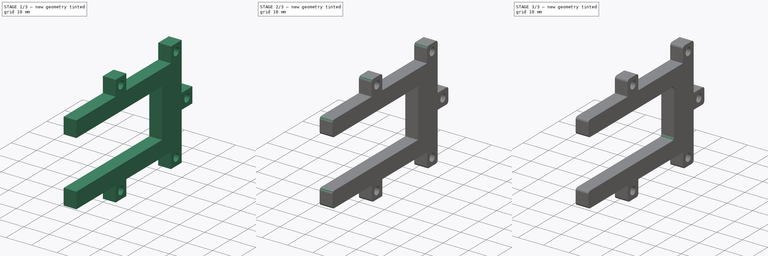
[diagram: build sequence overview — one tinted view per stage of 3, left to right]
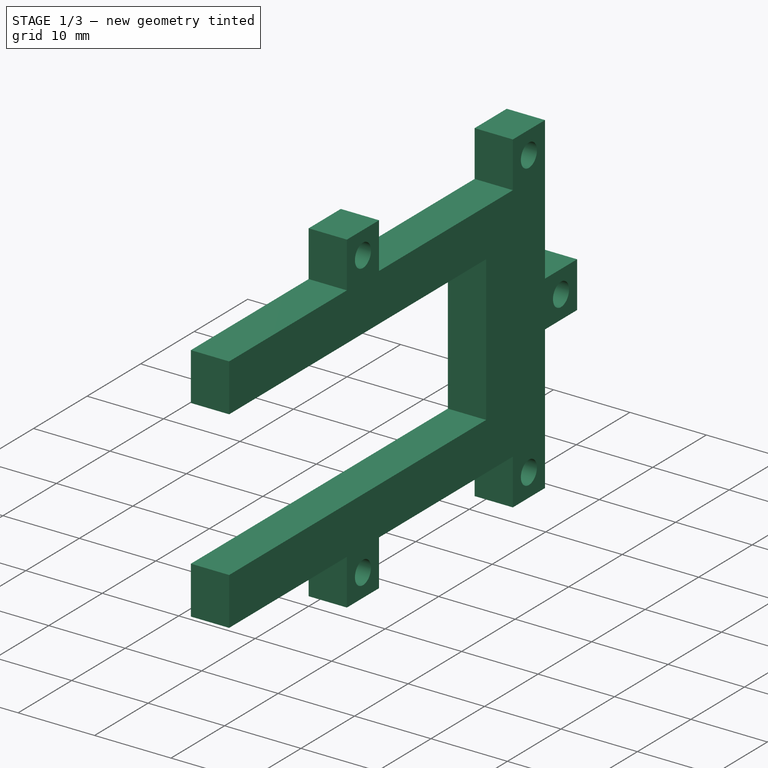
[diagram: stage 1 of 3 — iso view after this stage's code; geometry added in this stage tinted green]
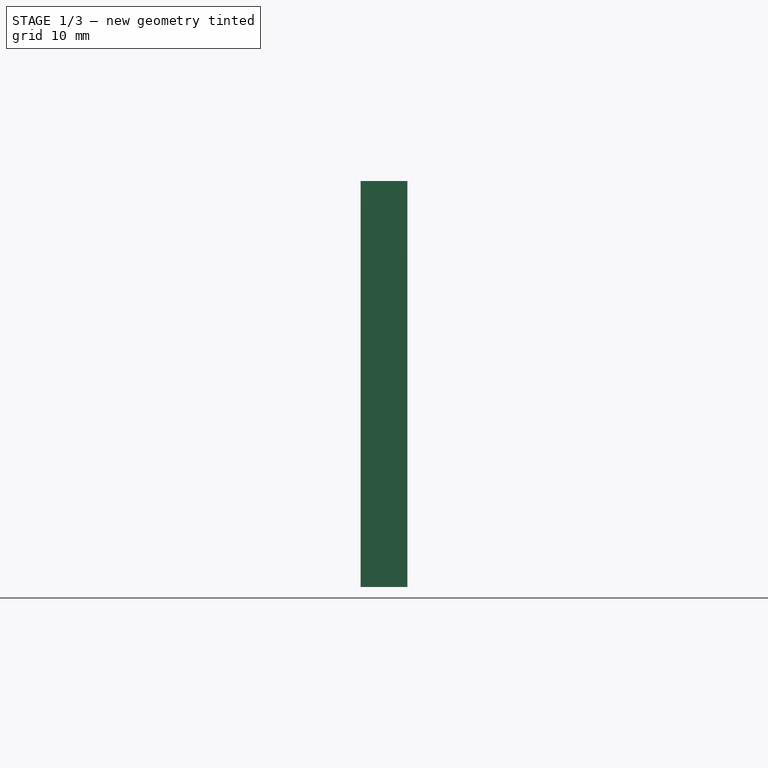
[diagram: stage 1 of 3 — front view after this stage's code; geometry added in this stage tinted green]
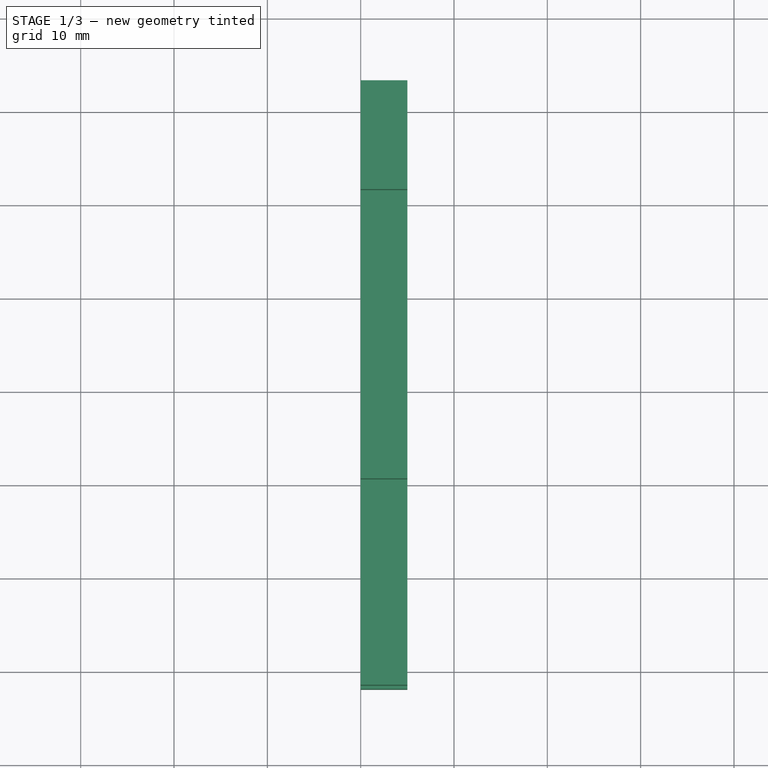
[diagram: stage 1 of 3 — top view after this stage's code; geometry added in this stage tinted green]
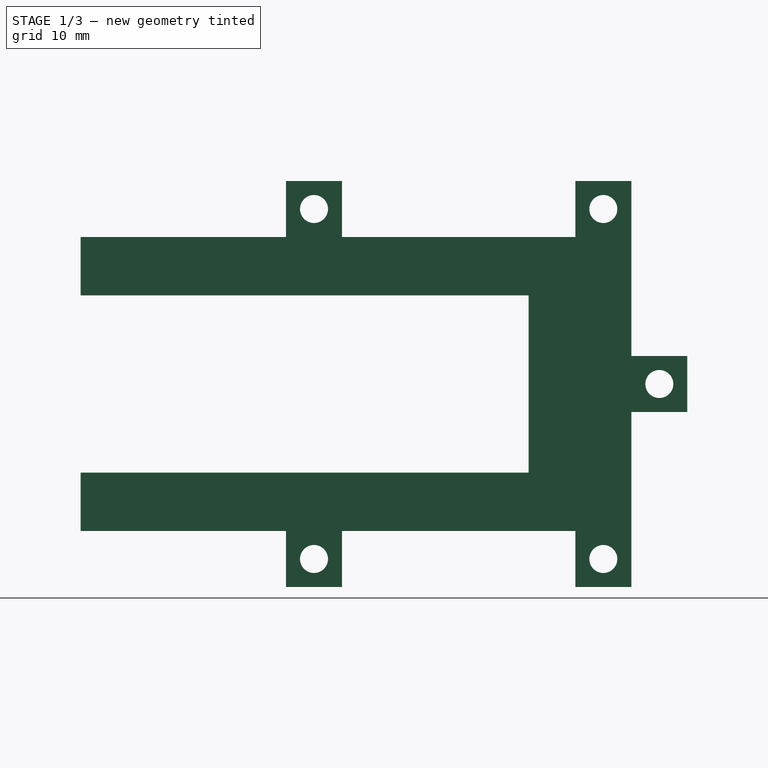
[diagram: stage 1 of 3 — right view after this stage's code; geometry added in this stage tinted green]
FCSTD DOCUMENT  (FreeCAD 0.19R24276 (Git))
Label: Lens_holder_Part_2
License: All rights reserved
LicenseURL: http://en.wikipedia.org/wiki/All_rights_reserved
objects: PartDesign::Fillet×5, Sketcher::SketchObject×2, PartDesign::Pad×1, PartDesign::Pocket×1, PartDesign::Body×1
note: 17 computed .brp shape members not serialized (recipe doc carries the construction recipe); baked Part::Feature solids carry a one-line shape summary decoded from their .brp

FEATURE [Sketcher::SketchObject] Sketch
  FullyConstrained = false
  MapMode = 5
  Placement = pos=(0,0,0) rot=(0.57735,0.57735,0.57735;2.0944rad)
  Support = -> [YZ_Plane]
  sketch-geometry (44):
    g0: LineSegment StartX=0 StartY=0 StartZ=0 EndX=37 EndY=0 EndZ=0
    g1: LineSegment StartX=37 StartY=0 StartZ=0 EndX=37 EndY=31.5 EndZ=0
    g2: LineSegment StartX=37 StartY=31.5 StartZ=0 EndX=0 EndY=31.5 EndZ=0
    g3: LineSegment StartX=0 StartY=31.5 StartZ=0 EndX=0 EndY=0 EndZ=0
    g4: Circle CenterX=18.5 CenterY=15.75 CenterZ=0 NormalX=0 NormalY=0 NormalZ=1 AngleXU=0 Radius=3.83506
    g5: LineSegment StartX=18.5 StartY=15.75 StartZ=0 EndX=37 EndY=15.75 EndZ=0
    g6: Circle CenterX=18.5 CenterY=15.75 CenterZ=0 NormalX=0 NormalY=0 NormalZ=1 AngleXU=0 Radius=17.6777
    g7: LineSegment StartX=18.5 StartY=15.75 StartZ=0 EndX=18.5 EndY=31.5 EndZ=0
    g8: LineSegment StartX=37 StartY=31.5 StartZ=0 EndX=31 EndY=31.5 EndZ=0
    g9: LineSegment StartX=31 StartY=31.5 StartZ=0 EndX=31 EndY=37.5 EndZ=0
    g10: LineSegment StartX=31 StartY=37.5 StartZ=0 EndX=37 EndY=37.5 EndZ=0
    g11: LineSegment StartX=37 StartY=37.5 StartZ=0 EndX=37 EndY=31.5 EndZ=0
    g12: LineSegment StartX=31 StartY=31.5 StartZ=0 EndX=0 EndY=31.5 EndZ=0
    g13: LineSegment StartX=6 StartY=37.5 StartZ=0 EndX=0 EndY=37.5 EndZ=0
    g14: LineSegment StartX=6 StartY=31.5 StartZ=0 EndX=6 EndY=37.5 EndZ=0
    g15: LineSegment StartX=6 StartY=31.5 StartZ=0 EndX=31 EndY=31.5 EndZ=0
    g16: LineSegment StartX=0 StartY=37.5 StartZ=0 EndX=0 EndY=-6 EndZ=0
    g17: LineSegment StartX=37 StartY=0 StartZ=0 EndX=31 EndY=0 EndZ=0
    g18: LineSegment StartX=31 StartY=0 StartZ=0 EndX=31 EndY=-6 EndZ=0
    g19: LineSegment StartX=31 StartY=-6 StartZ=0 EndX=37 EndY=-6 EndZ=0
    g20: LineSegment StartX=37 StartY=-6 StartZ=0 EndX=37 EndY=0 EndZ=0
    g21: LineSegment StartX=6 StartY=-6 StartZ=0 EndX=0 EndY=-6 EndZ=0
    g22: LineSegment StartX=6 StartY=0 StartZ=0 EndX=6 EndY=-6 EndZ=0
    g23: LineSegment StartX=37 StartY=37.5 StartZ=0 EndX=37 EndY=-6 EndZ=0
    g24: LineSegment StartX=0 StartY=37.5 StartZ=0 EndX=0 EndY=-6 EndZ=0
    g25: LineSegment StartX=6 StartY=0 StartZ=0 EndX=31 EndY=0 EndZ=0
    g26: LineSegment StartX=6 StartY=31.5 StartZ=0 EndX=31 EndY=31.5 EndZ=0
    g27: LineSegment StartX=37 StartY=18.75 StartZ=0 EndX=43 EndY=18.75 EndZ=0
    g28: LineSegment StartX=43 StartY=18.75 StartZ=0 EndX=43 EndY=12.75 EndZ=0
    g29: LineSegment StartX=43 StartY=12.75 StartZ=0 EndX=37 EndY=12.75 EndZ=0
    g30: LineSegment StartX=37 StartY=12.75 StartZ=0 EndX=37 EndY=18.75 EndZ=0
    g31: LineSegment StartX=37 StartY=37.5 StartZ=0 EndX=37 EndY=18.75 EndZ=0
    g32: LineSegment StartX=37 StartY=12.75 StartZ=0 EndX=37 EndY=-6 EndZ=0
    g33: LineSegment StartX=26 StartY=31.5 StartZ=0 EndX=26 EndY=0 EndZ=0
    g34: LineSegment StartX=-22 StartY=25.25 StartZ=0 EndX=26 EndY=25.25 EndZ=0
    g35: LineSegment StartX=26 StartY=6.25 StartZ=0 EndX=-22 EndY=6.25 EndZ=0
    g36: LineSegment StartX=-22 StartY=25.25 StartZ=0 EndX=-22 EndY=6.25 EndZ=0
    g37: LineSegment StartX=0 StartY=31.5 StartZ=0 EndX=-22 EndY=31.5 EndZ=0
    g38: LineSegment StartX=0 StartY=0 StartZ=0 EndX=-22 EndY=0 EndZ=0
    g39: LineSegment StartX=-22 StartY=25.25 StartZ=0 EndX=-22 EndY=31.5 EndZ=0
    g40: LineSegment StartX=-22 StartY=6.25 StartZ=0 EndX=-22 EndY=0 EndZ=0
    g41: LineSegment StartX=0 StartY=31.5 StartZ=0 EndX=0 EndY=37.5 EndZ=0
    g42: LineSegment StartX=0 StartY=0 StartZ=0 EndX=0 EndY=-6 EndZ=0
    g43: LineSegment StartX=26 StartY=25.25 StartZ=0 EndX=26 EndY=6.25 EndZ=0
  constraints (113):
    c: Coincident(g0,g1)
    c: Coincident(g1,g2)
    c: Coincident(g2,g3)
    c: Coincident(g3,g0)
    c: Horizontal(g0)
    c: Horizontal(g2)
    c: Vertical(g1)
    c: Vertical(g3)
    c: Coincident(g0,g-1)
    c: DistanceY(g3,g3) = 31.5
    c: DistanceX(g4,g0) = 18.5
    c: Coincident(g5,g4)
    c: Horizontal(g5)
    c: Symmetric(g1,g0,g5)
    c: Coincident(g6,g4)
    c: Coincident(g7,g4)
    c: Vertical(g7)
    c: Symmetric(g2,g1,g7)
    c: Coincident(g8,g9)
    c: Coincident(g9,g10)
    c: Coincident(g10,g11)
    c: Coincident(g11,g8)
    c: Horizontal(g8)
    c: Horizontal(g10)
    c: Vertical(g9)
    c: Vertical(g11)
    c: Coincident(g8,g1)
    c: DistanceY(g11,g11) = 6
    c: DistanceX(g10,g10) = 6
    c: Coincident(g12,g9)
    c: Coincident(g12,g3)
    c: Coincident(g14,g13)
    c: Horizontal(g13)
    c: Vertical(g14)
    c: Horizontal(g14,g9)
    c: Coincident(g15,g9)
    c: Coincident(g16,g13)
    c: Vertical(g3,g13)
    c: Horizontal(g13,g9)
    c: Equal(g13,g10)
    c: Coincident(g15,g14)
    c: Coincident(g17,g18)
    c: Coincident(g18,g19)
    c: Coincident(g19,g20)
    c: Coincident(g20,g17)
    c: Horizontal(g17)
    c: Horizontal(g19)
    c: Vertical(g18)
    c: Vertical(g20)
    c: Coincident(g22,g21)
    c: Horizontal(g21)
    c: Vertical(g22)
    c: Equal(g21,g19)
    c: Vertical(g18,g9)
    c: Equal(g18,g9)
    c: Coincident(g17,g0)
    c: Horizontal(g21,g18)
    c: Vertical(g21,g0)
    c: Coincident(g16,g21)
    c: Horizontal(g22,g18)
    c: Coincident(g23,g10)
    c: Coincident(g23,g19)
    c: Coincident(g24,g13)
    c: Coincident(g24,g21)
    c: Coincident(g25,g22)
    c: Coincident(g25,g18)
    c: Coincident(g26,g14)
    c: Coincident(g26,g9)
    c: Coincident(g27,g28)
    c: Coincident(g28,g29)
    c: Coincident(g29,g30)
    c: Coincident(g30,g27)
    c: Horizontal(g27)
    c: Horizontal(g29)
    c: Vertical(g28)
    c: Vertical(g30)
    c: DistanceY(g28,g28) = 6
    c: DistanceX(g29,g29) = 6
    c: Symmetric(g27,g29,g5)
    c: Coincident(g31,g10)
    c: Coincident(g32,g29)
    c: Coincident(g31,g27)
    c: Coincident(g32,g19)
    c: PointOnObject(g33,g2)
    c: PointOnObject(g33,g0)
    c: DistanceX(g33,g1) = 11
    c: Vertical(g33)
    c: Horizontal(g34)
    c: PointOnObject(g34,g33)
    c: Horizontal(g35)
    c: PointOnObject(g35,g33)
    c: DistanceY(g35,g34) = 19
    c: DistanceY(g4,g34) = 9.5
    c: Vertical(g36)
    c: Coincident(g36,g35)
    c: Coincident(g36,g34)
    c: DistanceX(g35,g35) = 48
    c: Coincident(g37,g2)
    c: Horizontal(g37)
    c: Coincident(g38,g-1)
    c: Coincident(g39,g34)
    c: Vertical(g39)
    c: Coincident(g40,g35)
    c: Vertical(g40)
    c: Coincident(g38,g40)
    c: Coincident(g39,g37)
    c: Horizontal(g38)
    c: Coincident(g41,g37)
    c: Coincident(g42,g38)
    c: Coincident(g42,g21)
    c: Coincident(g41,g13)
    c: Coincident(g43,g34)
    c: Coincident(g43,g35)
FEATURE [PartDesign::Pad] Pad
  Direction = (1,1,1)
  Length = 5
  Length2 = 100
  Placement = pos=(0,0,0) rot=(0.57735,0.57735,0.57735;2.0944rad)
  Profile = -> Sketch
  Type = 0
FEATURE [Sketcher::SketchObject] Sketch006
  FullyConstrained = true
  MapMode = 5
  Placement = pos=(5,-4e-15,3e-15) rot=(0.57735,0.57735,0.57735;2.0944rad)
  sketch-geometry (9):
    g0: Circle CenterX=34 CenterY=-3 CenterZ=0 NormalX=0 NormalY=0 NormalZ=1 AngleXU=0 Radius=1.5
    g1: Circle CenterX=3 CenterY=-3 CenterZ=0 NormalX=0 NormalY=0 NormalZ=1 AngleXU=0 Radius=1.5
    g2: Circle CenterX=3 CenterY=34.5 CenterZ=0 NormalX=0 NormalY=0 NormalZ=1 AngleXU=0 Radius=1.5
    g3: Circle CenterX=34 CenterY=34.5 CenterZ=0 NormalX=0 NormalY=0 NormalZ=1 AngleXU=0 Radius=1.5
    g4: LineSegment StartX=0 StartY=-6 StartZ=0 EndX=37 EndY=-6 EndZ=0
    g5: LineSegment StartX=37 StartY=-6 StartZ=0 EndX=37 EndY=37.5 EndZ=0
    g6: LineSegment StartX=37 StartY=37.5 StartZ=0 EndX=0 EndY=37.5 EndZ=0
    g7: LineSegment StartX=0 StartY=37.5 StartZ=0 EndX=0 EndY=-6 EndZ=0
    g8: Circle CenterX=40 CenterY=15.75 CenterZ=0 NormalX=0 NormalY=0 NormalZ=1 AngleXU=0 Radius=1.5
  constraints (27):
    c: Vertical(g2,g1)
    c: Vertical(g3,g0)
    c: Horizontal(g2,g3)
    c: Horizontal(g1,g0)
    c: Diameter(g1) = 3
    c: Equal(g1,g0)
    c: Equal(g1,g3)
    c: Equal(g1,g2)
    c: DistanceX(g-1,g1) = 3
    c: DistanceY(g1,g-1) = 3
    c: Coincident(g4,g5)
    c: Coincident(g5,g6)
    c: Coincident(g6,g7)
    c: Coincident(g7,g4)
    c: Horizontal(g4)
    c: Horizontal(g6)
    c: Vertical(g5)
    c: Vertical(g7)
    c: PointOnObject(g4,g-2)
    c: DistanceX(g4,g4) = 37
    c: DistanceY(g5,g5) = 43.5
    c: DistanceX(g0,g4) = 3
    c: DistanceY(g3,g5) = 3
    c: DistanceY(g4,g-1) = 6
    c: Equal(g0,g8)
    c: DistanceY(g4,g8) = 21.75
    c: DistanceX(g0,g8) = 6
FEATURE [PartDesign::Pocket] Pocket
  BaseFeature = -> Pad
  Length = 5
  Length2 = 100
  Placement = pos=(0,0,0) rot=(0.57735,0.57735,0.57735;2.0944rad)
  Profile = -> Sketch006
  Type = 1
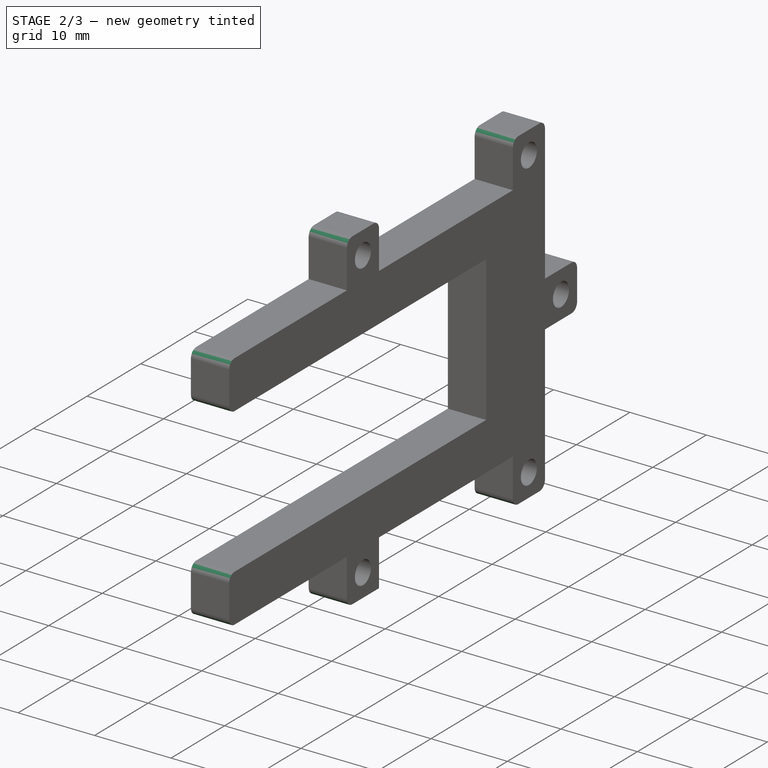
[diagram: stage 2 of 3 — iso view after this stage's code; geometry added in this stage tinted green]
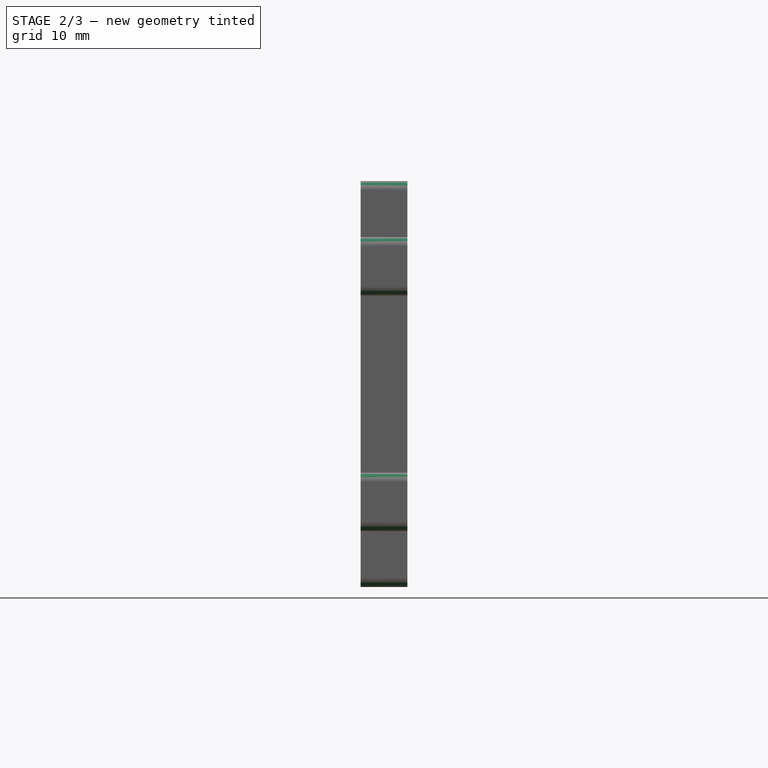
[diagram: stage 2 of 3 — front view after this stage's code; geometry added in this stage tinted green]
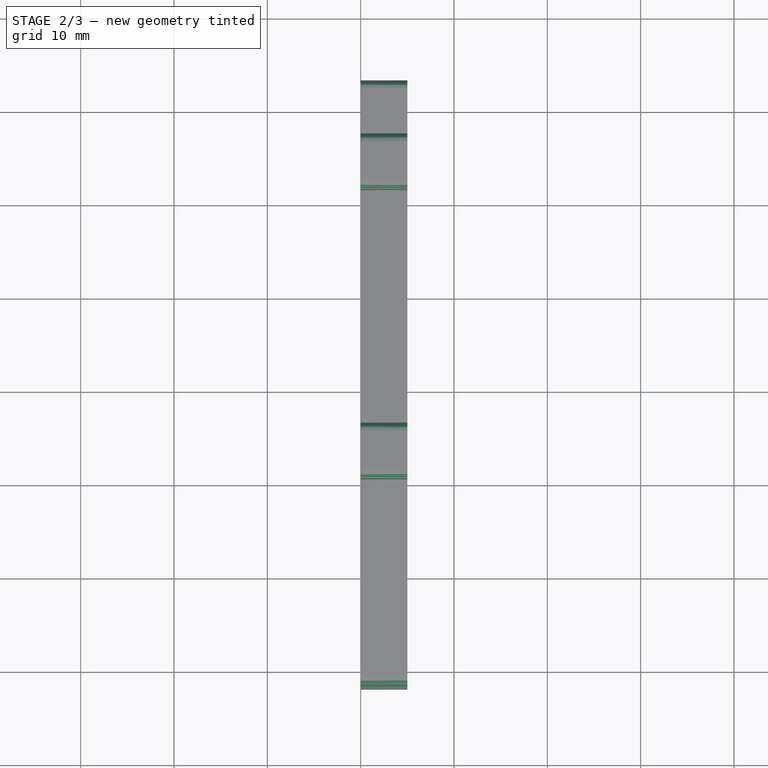
[diagram: stage 2 of 3 — top view after this stage's code; geometry added in this stage tinted green]
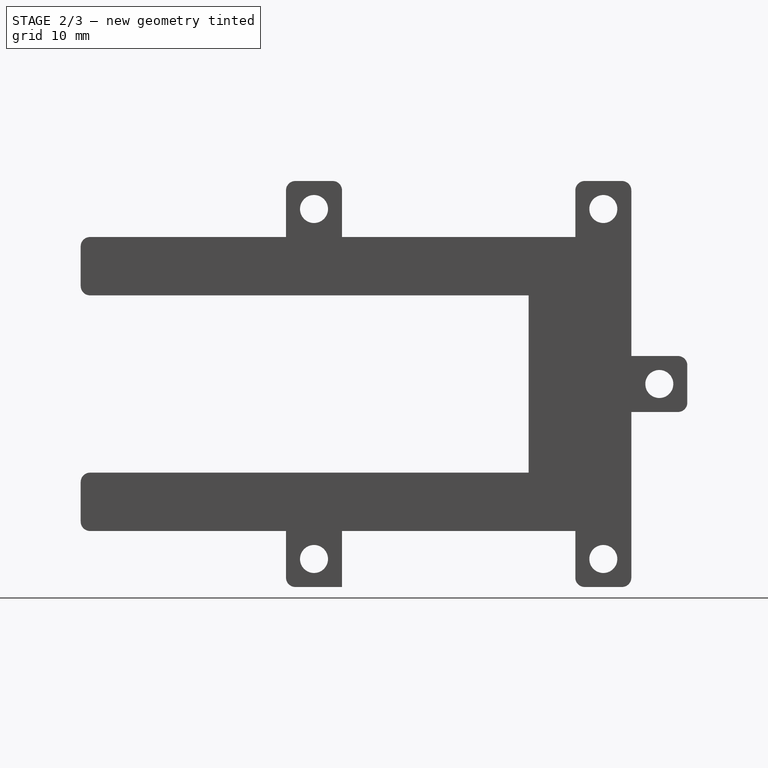
[diagram: stage 2 of 3 — right view after this stage's code; geometry added in this stage tinted green]
FEATURE [PartDesign::Fillet] Fillet
  Base = -> Pocket [Edge75,Edge73,Edge67,Edge65,Edge5,Edge1,Edge8]
  BaseFeature = -> Pocket
  Placement = pos=(0,0,0) rot=(0.57735,0.57735,0.57735;2.0944rad)
  Radius = 1
  SupportTransform = false
FEATURE [PartDesign::Fillet] Fillet001
  Base = -> Fillet [Edge102]
  BaseFeature = -> Fillet
  Placement = pos=(0,0,0) rot=(0.57735,0.57735,0.57735;2.0944rad)
  Radius = 1
  SupportTransform = false
FEATURE [PartDesign::Fillet] Fillet002
  Base = -> Fillet001 [Edge39,Edge55,Edge63,Edge79,Edge51]
  BaseFeature = -> Fillet001
  Placement = pos=(0,0,0) rot=(0.57735,0.57735,0.57735;2.0944rad)
  Radius = 1
  SupportTransform = false
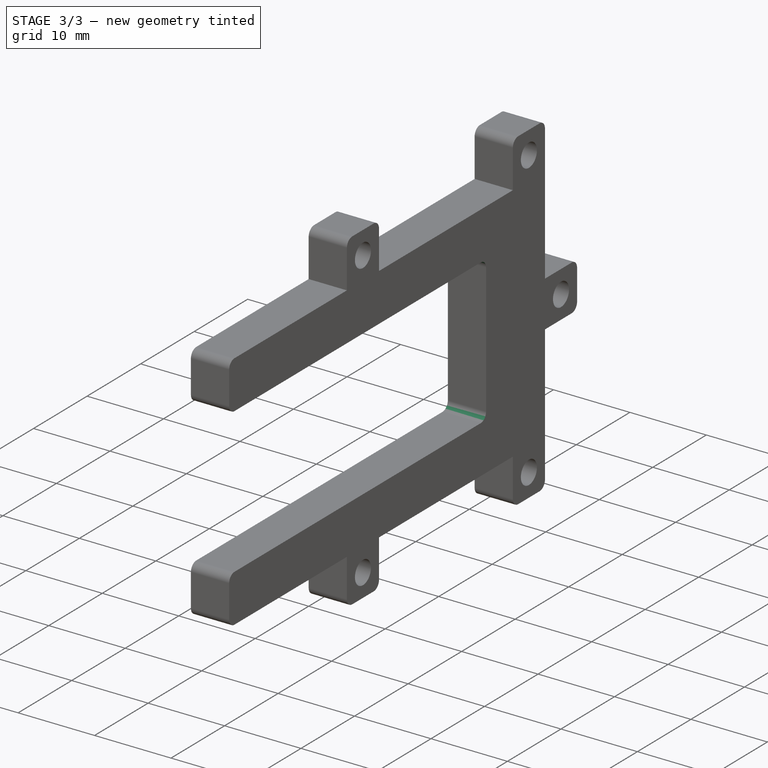
[diagram: stage 3 of 3 — iso view after this stage's code; geometry added in this stage tinted green]
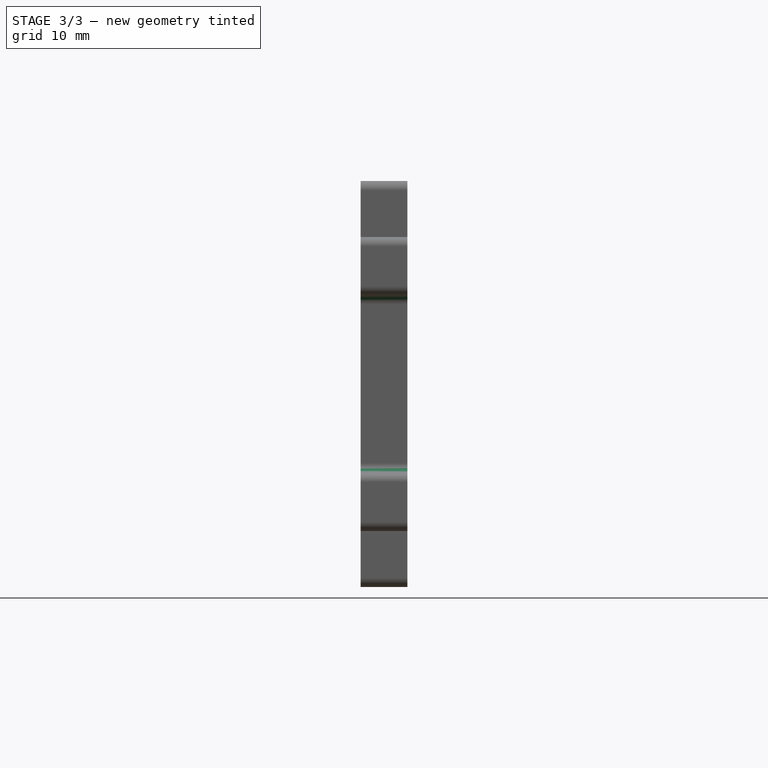
[diagram: stage 3 of 3 — front view after this stage's code; geometry added in this stage tinted green]
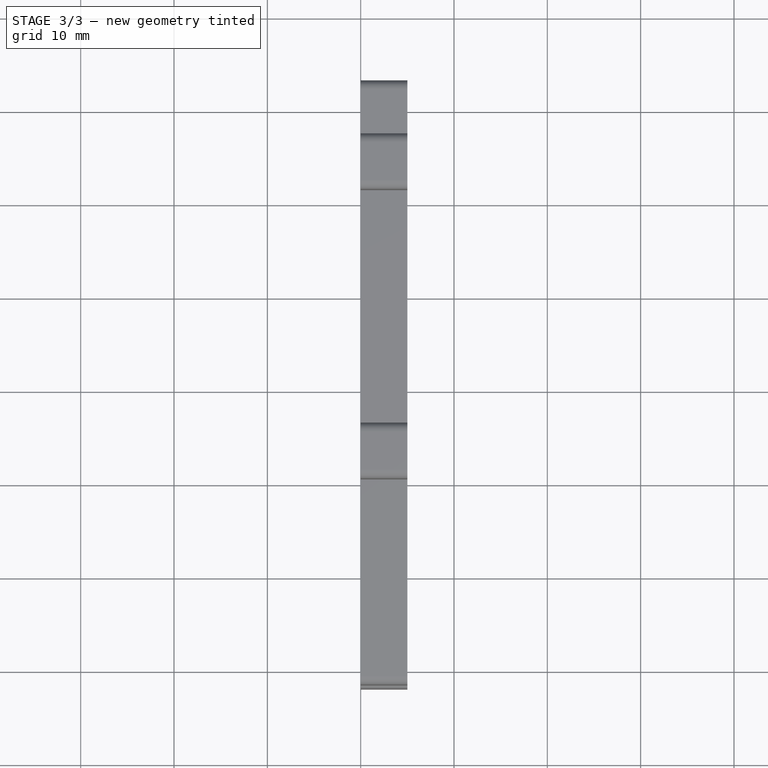
[diagram: stage 3 of 3 — top view after this stage's code; geometry added in this stage tinted green]
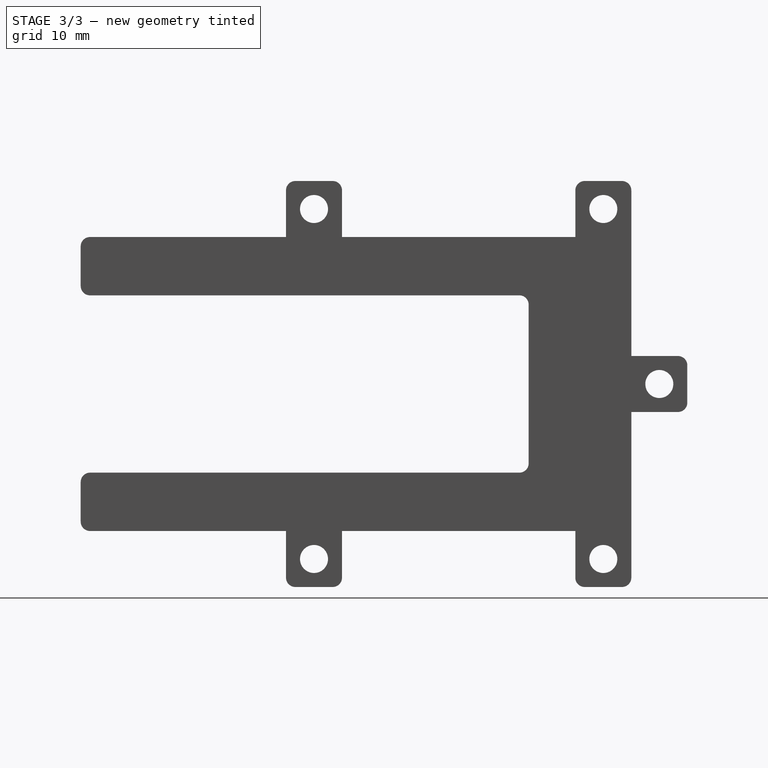
[diagram: stage 3 of 3 — right view after this stage's code; geometry added in this stage tinted green]
FEATURE [PartDesign::Fillet] Fillet003
  Base = -> Fillet002 [Edge54,Edge50]
  BaseFeature = -> Fillet002
  Placement = pos=(0,0,0) rot=(0.57735,0.57735,0.57735;2.0944rad)
  Radius = 1
  SupportTransform = false
FEATURE [PartDesign::Fillet] Fillet004
  Base = -> Fillet003 [Edge88]
  BaseFeature = -> Fillet003
  Placement = pos=(0,0,0) rot=(0.57735,0.57735,0.57735;2.0944rad)
  Radius = 1
  SupportTransform = false
FEATURE [PartDesign::Body] Body
  Group = -> [Sketch,Pad,Sketch006,Pocket,Fillet,Fillet001,Fillet002,Fillet003,Fillet004]
  Origin = -> Origin
  Tip = -> Fillet004
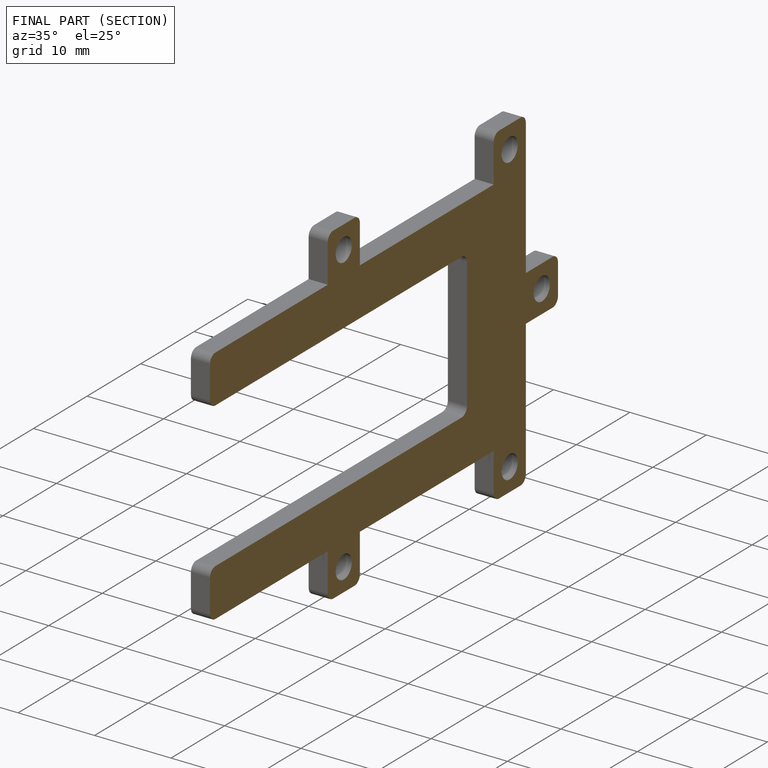
[diagram: finished part — half-section view (interior)]
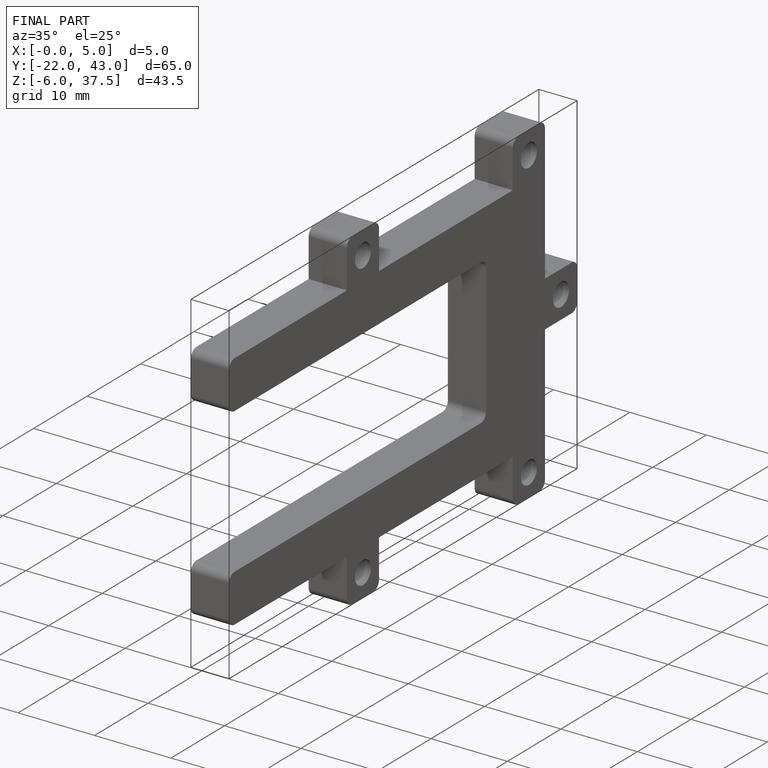
[diagram: finished part — iso view with bounding-box wireframe]
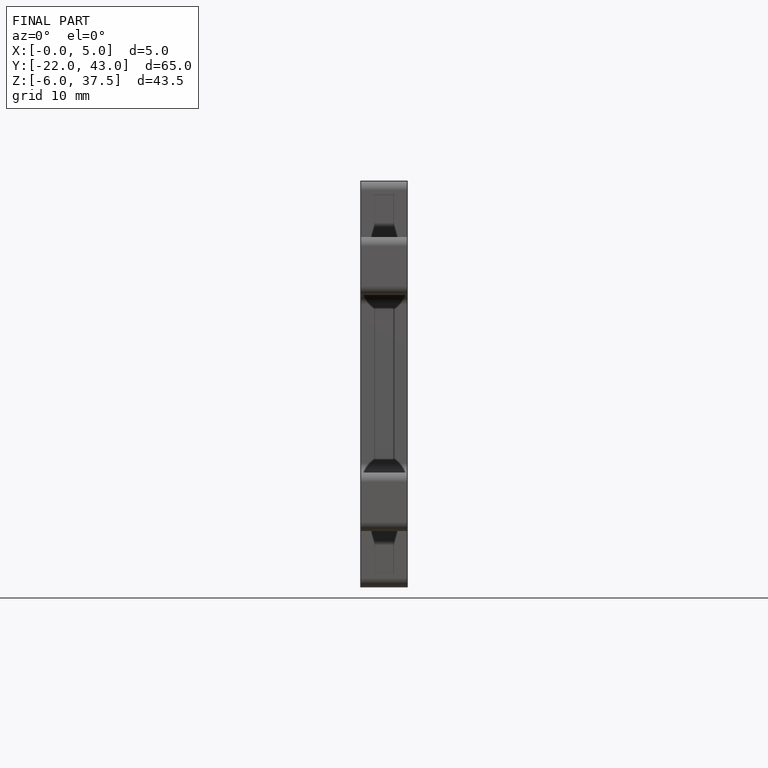
[diagram: finished part — front view with bounding-box wireframe]
